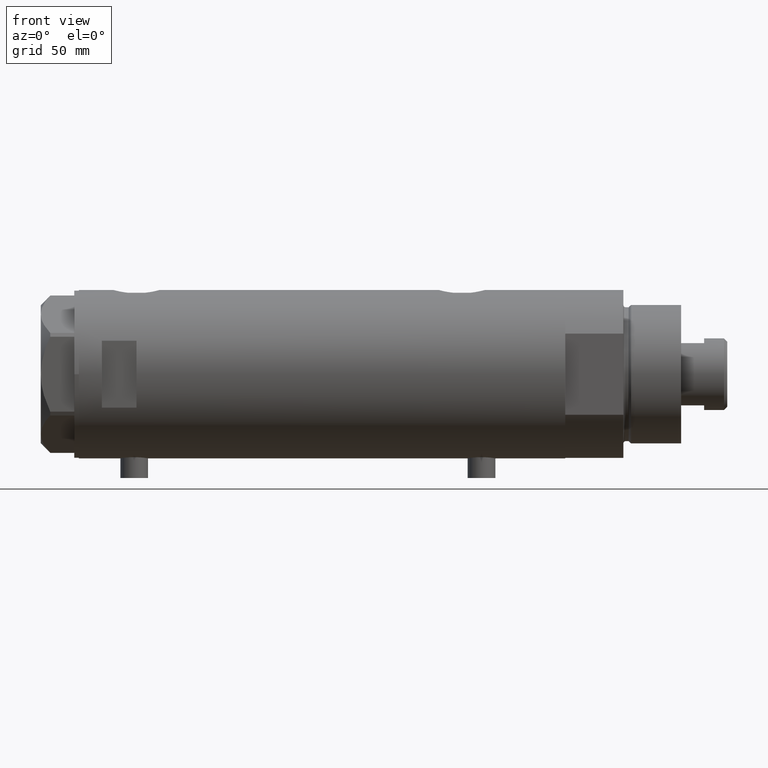
[diagram: clean part render]
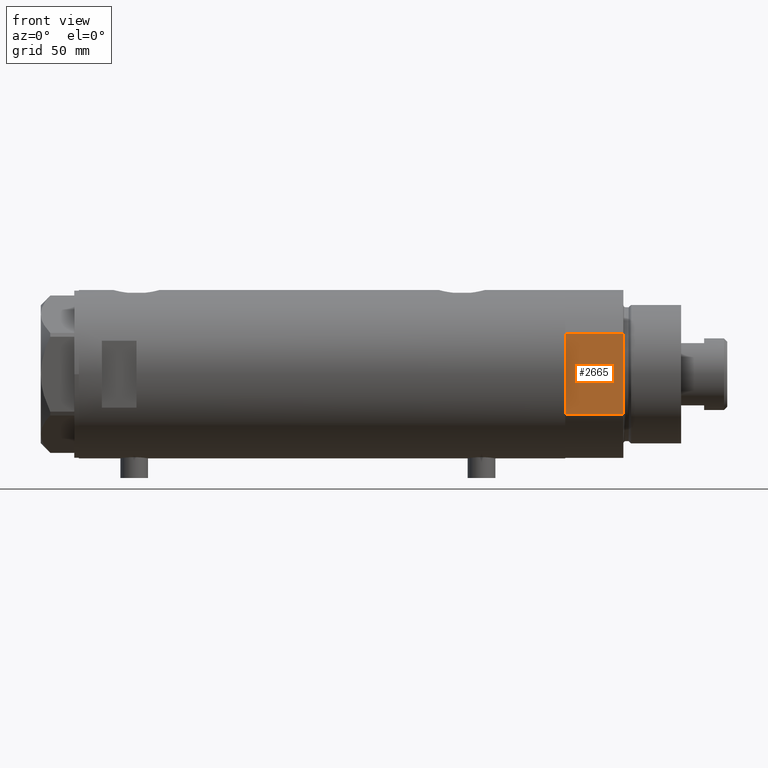
[diagram: same view with one face highlighted and labeled with its STEP entity id]
A machine part, front view. The second image highlights one B-rep face of the part: STEP entity #2665.
In plain terms, the highlighted planar face has unit normal (-0, 1, 0).
Its self-contained STEP definition (entity closure, byte-faithful):
#299 = CARTESIAN_POINT ( 'NONE',  ( 17.55704986607943141, -32.00000000000000000, 0.000000000000000000 ) ) ;
#348 = DIRECTION ( 'NONE',  ( -1.000000000000000000, -0.000000000000000000, -0.000000000000000000 ) ) ;
#411 = VERTEX_POINT ( 'NONE', #2209 ) ;
#585 = EDGE_LOOP ( 'NONE', ( #3837, #3139, #3303, #665, #1084 ) ) ;
#601 = CARTESIAN_POINT ( 'NONE',  ( -17.55704986607943141, -32.00000000000000000, 0.000000000000000000 ) ) ;
#642 = EDGE_CURVE ( 'NONE', #2964, #411, #2396, .T. ) ;
#665 = ORIENTED_EDGE ( 'NONE', *, *, #2340, .F. ) ;
#732 = CARTESIAN_POINT ( 'NONE',  ( 0.000000000000000000, -32.00000000000000000, 0.000000000000000000 ) ) ;
#901 = LINE ( 'NONE', #1212, #2249 ) ;
#911 = FACE_OUTER_BOUND ( 'NONE', #585, .T. ) ;
#997 = PLANE ( 'NONE',  #1291 ) ;
#1084 = ORIENTED_EDGE ( 'NONE', *, *, #4377, .T. ) ;
#1096 = LINE ( 'NONE', #4239, #4075 ) ;
#1194 = EDGE_CURVE ( 'NONE', #1555, #2495, #1228, .T. ) ;
#1212 = CARTESIAN_POINT ( 'NONE',  ( -17.55704986607943141, -32.00000000000000000, 0.000000000000000000 ) ) ;
#1228 = LINE ( 'NONE', #2648, #3841 ) ;
#1291 = AXIS2_PLACEMENT_3D ( 'NONE', #601, #1957, #4097 ) ;
#1555 = VERTEX_POINT ( 'NONE', #732 ) ;
#1794 = VERTEX_POINT ( 'NONE', #4067 ) ;
#1957 = DIRECTION ( 'NONE',  ( -0.000000000000000000, 1.000000000000000000, 0.000000000000000000 ) ) ;
#1994 = EDGE_CURVE ( 'NONE', #2495, #411, #901, .T. ) ;
#2209 = CARTESIAN_POINT ( 'NONE',  ( -17.55704986607943496, -32.00000000000000000, 25.19999999999999929 ) ) ;
#2239 = DIRECTION ( 'NONE',  ( -1.000000000000000000, -0.000000000000000000, -0.000000000000000000 ) ) ;
#2249 = VECTOR ( 'NONE', #2982, 1000.000000000000000 ) ;
#2340 = EDGE_CURVE ( 'NONE', #1794, #1555, #1096, .T. ) ;
#2396 = LINE ( 'NONE', #4104, #3397 ) ;
#2495 = VERTEX_POINT ( 'NONE', #3964 ) ;
#2648 = CARTESIAN_POINT ( 'NONE',  ( -17.55704986607943141, -32.00000000000000000, 0.000000000000000000 ) ) ;
#2665 = ADVANCED_FACE ( 'NONE', ( #911 ), #997, .F. ) ;
#2964 = VERTEX_POINT ( 'NONE', #3725 ) ;
#2982 = DIRECTION ( 'NONE',  ( -0.000000000000000000, -0.000000000000000000, 1.000000000000000000 ) ) ;
#3030 = DIRECTION ( 'NONE',  ( -0.000000000000000000, -0.000000000000000000, 1.000000000000000000 ) ) ;
#3114 = DIRECTION ( 'NONE',  ( -1.000000000000000000, -0.000000000000000000, -0.000000000000000000 ) ) ;
#3139 = ORIENTED_EDGE ( 'NONE', *, *, #1994, .F. ) ;
#3303 = ORIENTED_EDGE ( 'NONE', *, *, #1194, .F. ) ;
#3397 = VECTOR ( 'NONE', #3114, 1000.000000000000000 ) ;
#3725 = CARTESIAN_POINT ( 'NONE',  ( 17.55704986607943496, -32.00000000000000000, 25.19999999999999929 ) ) ;
#3837 = ORIENTED_EDGE ( 'NONE', *, *, #642, .T. ) ;
#3841 = VECTOR ( 'NONE', #2239, 1000.000000000000000 ) ;
#3964 = CARTESIAN_POINT ( 'NONE',  ( -17.55704986607943496, -32.00000000000000000, 0.000000000000000000 ) ) ;
#4067 = CARTESIAN_POINT ( 'NONE',  ( 17.55704986607943141, -32.00000000000000000, 0.000000000000000000 ) ) ;
#4075 = VECTOR ( 'NONE', #348, 1000.000000000000000 ) ;
#4097 = DIRECTION ( 'NONE',  ( 0.000000000000000000, -0.000000000000000000, 1.000000000000000000 ) ) ;
#4104 = CARTESIAN_POINT ( 'NONE',  ( -17.55704986607943141, -32.00000000000000000, 25.19999999999999929 ) ) ;
#4239 = CARTESIAN_POINT ( 'NONE',  ( -17.55704986607943141, -32.00000000000000000, 0.000000000000000000 ) ) ;
#4377 = EDGE_CURVE ( 'NONE', #1794, #2964, #4450, .T. ) ;
#4436 = VECTOR ( 'NONE', #3030, 1000.000000000000000 ) ;
#4450 = LINE ( 'NONE', #299, #4436 ) ;